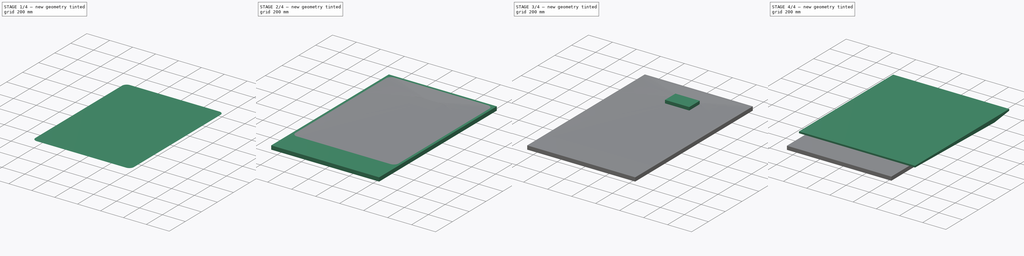
[diagram: build sequence overview — one tinted view per stage of 4, left to right]
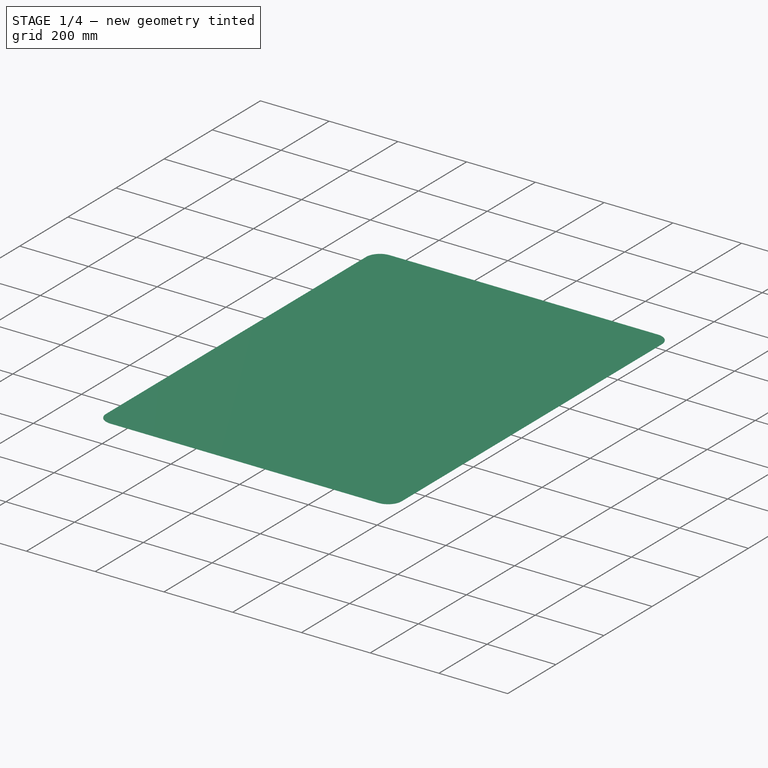
[diagram: stage 1 of 4 — iso view after this stage's code; geometry added in this stage tinted green]
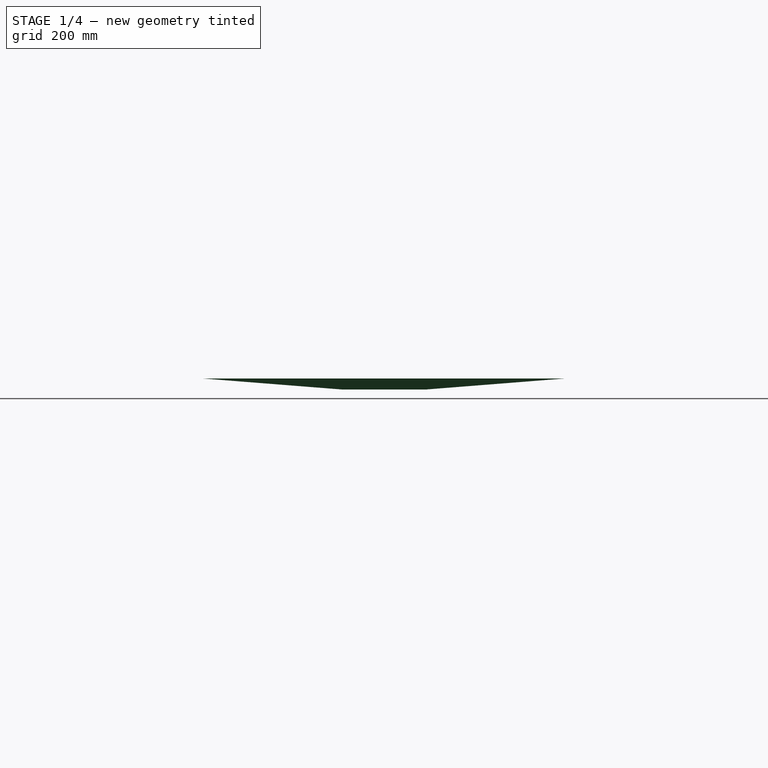
[diagram: stage 1 of 4 — front view after this stage's code; geometry added in this stage tinted green]
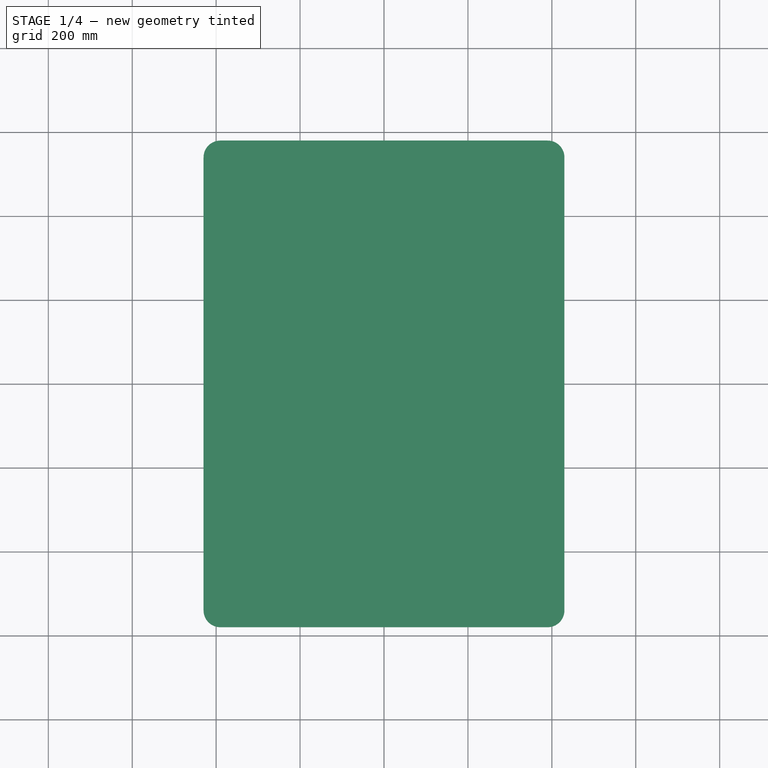
[diagram: stage 1 of 4 — top view after this stage's code; geometry added in this stage tinted green]
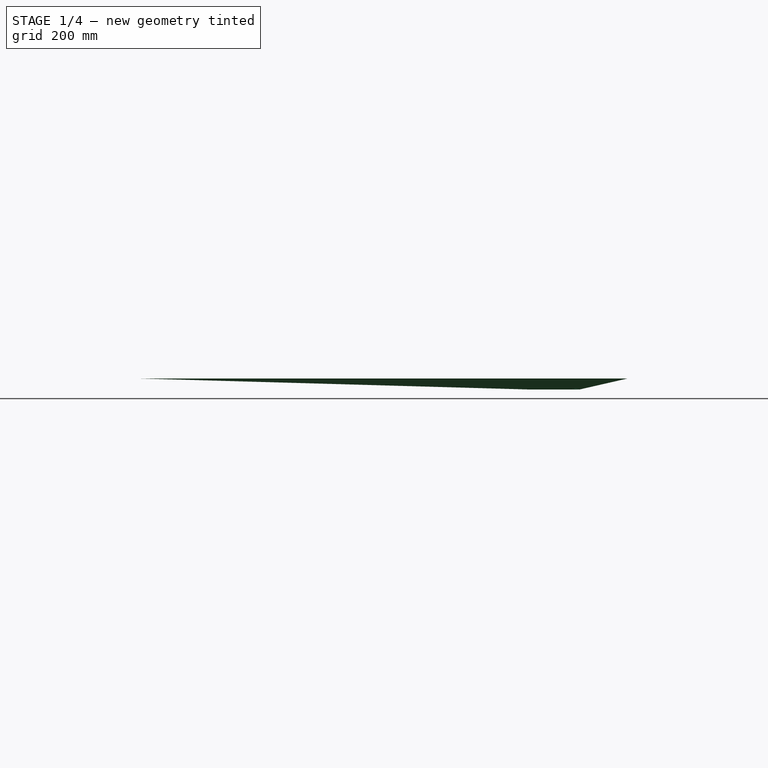
[diagram: stage 1 of 4 — right view after this stage's code; geometry added in this stage tinted green]
FCSTD DOCUMENT  (FreeCAD 0.16R6712 (Git))
Label: piatto
License: All rights reserved
LicenseURL: http://en.wikipedia.org/wiki/All_rights_reserved
objects: Sketcher::SketchObject×6, PartDesign::Pad×4, Part::FeaturePython×3, Spreadsheet::Sheet×1, Part::Loft×1, Part::Cut×1, Part::Fuse×1
note: 20 computed .brp shape members not serialized (recipe doc carries the construction recipe); baked Part::Feature solids carry a one-line shape summary decoded from their .brp

FEATURE [Sketcher::SketchObject] Sketch004  label="bassin001"
  expr: Constraints[19] = piatto.longueurbassin
  expr: Constraints[17] = piatto.conge
  expr: Constraints[18] = piatto.largeurbassin
  expr: Constraints[10] = piatto.conge
  expr: Constraints[11] = piatto.bobasutoc
  expr: Constraints[7] = piatto.bobatoc
  expr: Constraints[14] = piatto.conge
  expr: Constraints[6] = piatto.conge
  sketch-geometry (8):
    g0: LineSegment StartX=-390 StartY=180 StartZ=0 EndX=390 EndY=180 EndZ=0
    g1: LineSegment StartX=430 StartY=140 StartZ=0 EndX=430 EndY=-940 EndZ=0
    g2: LineSegment StartX=390 StartY=-980 StartZ=0 EndX=-390 EndY=-980 EndZ=0
    g3: LineSegment StartX=-430 StartY=-940 StartZ=0 EndX=-430 EndY=140 EndZ=0
    g4: ArcOfCircle CenterX=-390 CenterY=140 CenterZ=0 NormalX=0 NormalY=0 NormalZ=1 Radius=40 StartAngle=1.5708 EndAngle=3.14159
    g5: ArcOfCircle CenterX=390 CenterY=140 CenterZ=0 NormalX=0 NormalY=0 NormalZ=1 Radius=40 StartAngle=0 EndAngle=1.5708
    g6: ArcOfCircle CenterX=-390 CenterY=-940 CenterZ=0 NormalX=0 NormalY=0 NormalZ=1 Radius=40 StartAngle=3.14159 EndAngle=4.71239
    g7: ArcOfCircle CenterX=390 CenterY=-940 CenterZ=0 NormalX=0 NormalY=0 NormalZ=1 Radius=40 StartAngle=4.71239 EndAngle=6.28319
  constraints (20):
    c: Horizontal(g0)
    c: Horizontal(g2)
    c: Vertical(g1)
    c: Vertical(g3)
    c: Tangent(g0,g4) = 1.5708
    c: Tangent(g3,g4) = 1.5708
    c: Radius(g4) = 40
    c: Distance(g-1,g3) = 430
    c: Tangent(g0,g5) = 1.5708
    c: Tangent(g1,g5) = 1.5708
    c: Radius(g5) = 40
    c: Distance(g-1,g0) = 180
    c: Tangent(g3,g6) = 1.5708
    c: Tangent(g2,g6) = 1.5708
    c: Radius(g6) = 40
    c: Tangent(g2,g7) = 1.5708
    c: Tangent(g1,g7) = 1.5708
    c: Radius(g7) = 40
    c: DistanceX(g3,g1) = 860
    c: DistanceY(g2,g0) = 1160
FEATURE [Sketcher::SketchObject] Sketch005  label="evacuation001"
  Placement = pos=(0,0,-26) rot=(0,0,1;0rad)
  expr: Constraints[10] = piatto.Largeurevac / 2
  expr: Constraints[9] = piatto.longueurevac
  expr: Constraints[8] = piatto.Largeurevac
  sketch-geometry (4):
    g0: LineSegment StartX=-101.25 StartY=66.3364 StartZ=0 EndX=101.25 EndY=66.3364 EndZ=0
    g1: LineSegment StartX=101.25 StartY=66.3364 StartZ=0 EndX=101.25 EndY=-58.1636 EndZ=0
    g2: LineSegment StartX=101.25 StartY=-58.1636 StartZ=0 EndX=-101.25 EndY=-58.1636 EndZ=0
    g3: LineSegment StartX=-101.25 StartY=-58.1636 StartZ=0 EndX=-101.25 EndY=66.3364 EndZ=0
  constraints (11):
    c: Coincident(g0,g1)
    c: Coincident(g1,g2)
    c: Coincident(g2,g3)
    c: Coincident(g3,g0)
    c: Horizontal(g0)
    c: Horizontal(g2)
    c: Vertical(g1)
    c: Vertical(g3)
    c: DistanceX(g0,g0) = 202.5
    c: DistanceY(g3,g3) = 124.5
    c: Distance(g-1,g3) = 101.25
FEATURE [Part::Loft] Loft  label="SurfaceBassin"
  Closed = false
  Ruled = false
  Sections = -> [Sketch005,Sketch004]
  Solid = true
FEATURE [Part::FeaturePython] Clone001  label="Clone of SurfaceBassin"  # Draft clone (typed FeaturePython)
  Objects = -> [Loft]
  Scale = (1,1,1)
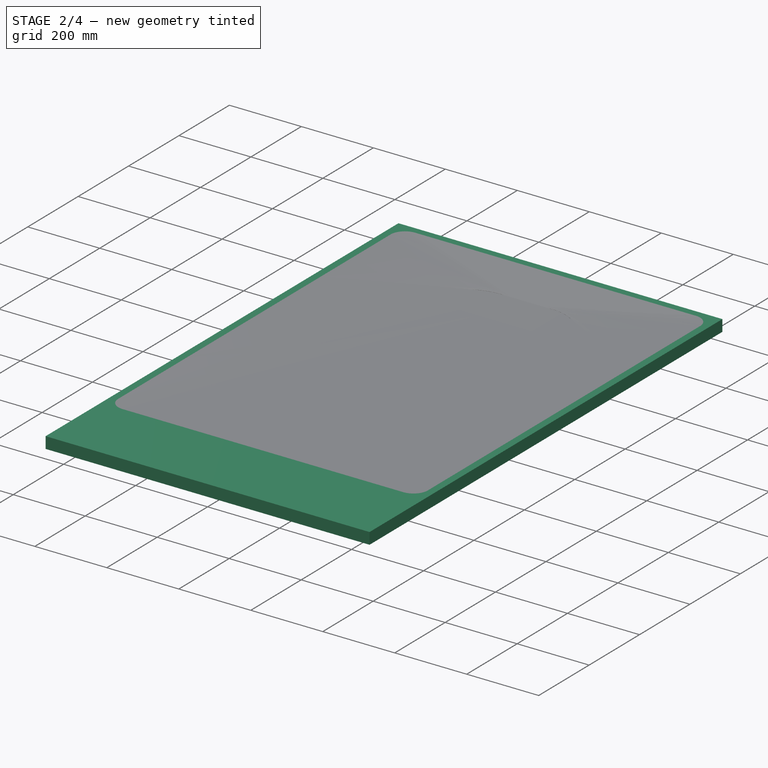
[diagram: stage 2 of 4 — iso view after this stage's code; geometry added in this stage tinted green]
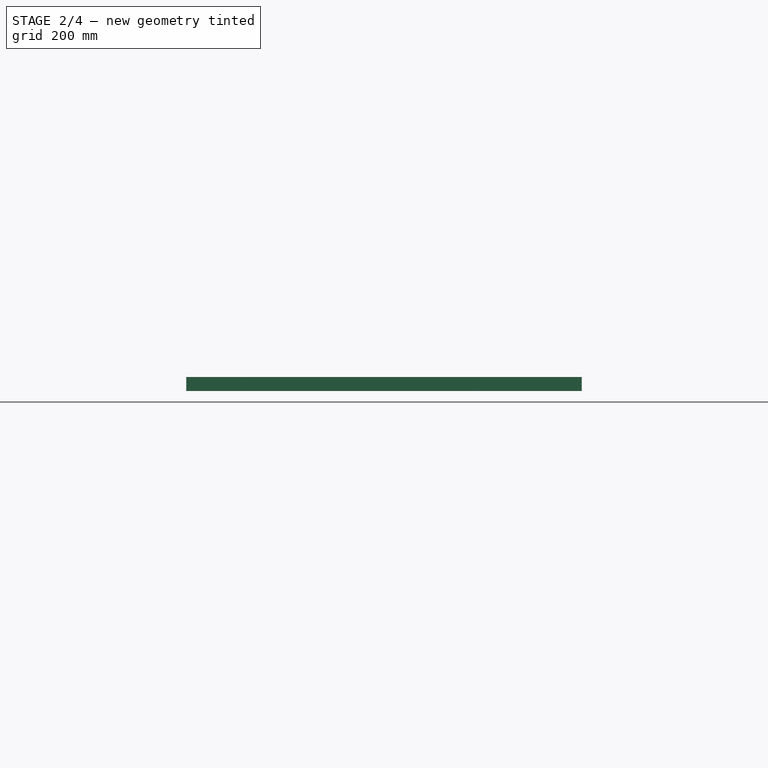
[diagram: stage 2 of 4 — front view after this stage's code; geometry added in this stage tinted green]
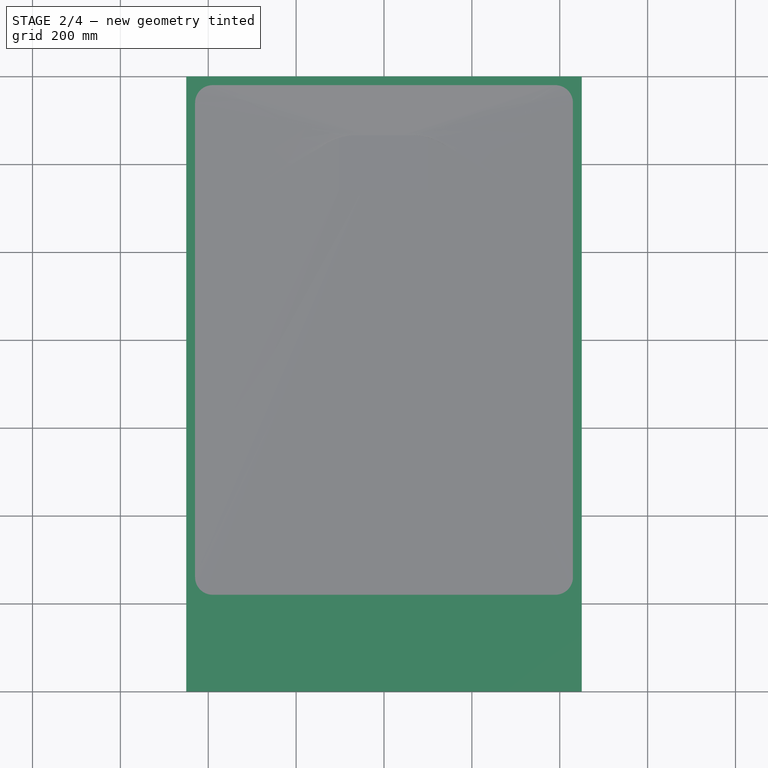
[diagram: stage 2 of 4 — top view after this stage's code; geometry added in this stage tinted green]
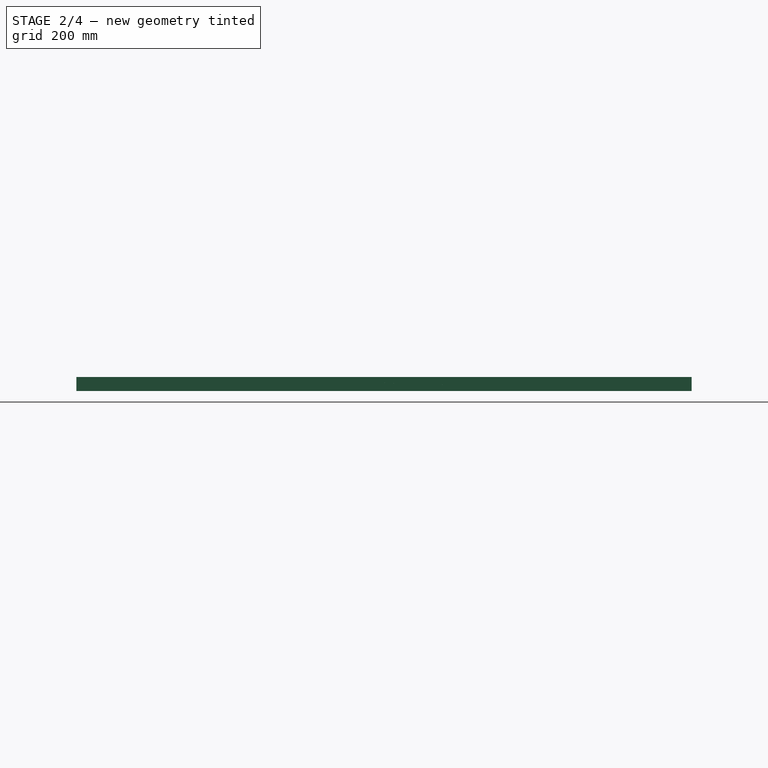
[diagram: stage 2 of 4 — right view after this stage's code; geometry added in this stage tinted green]
FEATURE [PartDesign::Pad] Pad001  label="PadBase"
  Length = 32
  Length2 = 100
  Reversed = true
  Sketch = -> Sketch
  Type = 0
  expr: Length = piatto.epaisseur
FEATURE [Part::FeaturePython] Clone  label="Clone of PadBase"  # Draft clone (typed FeaturePython)
  Objects = -> [Pad001]
  Scale = (1,1,1)
FEATURE [Part::Cut] Cut
  Base = -> Clone
  Tool = -> Clone001
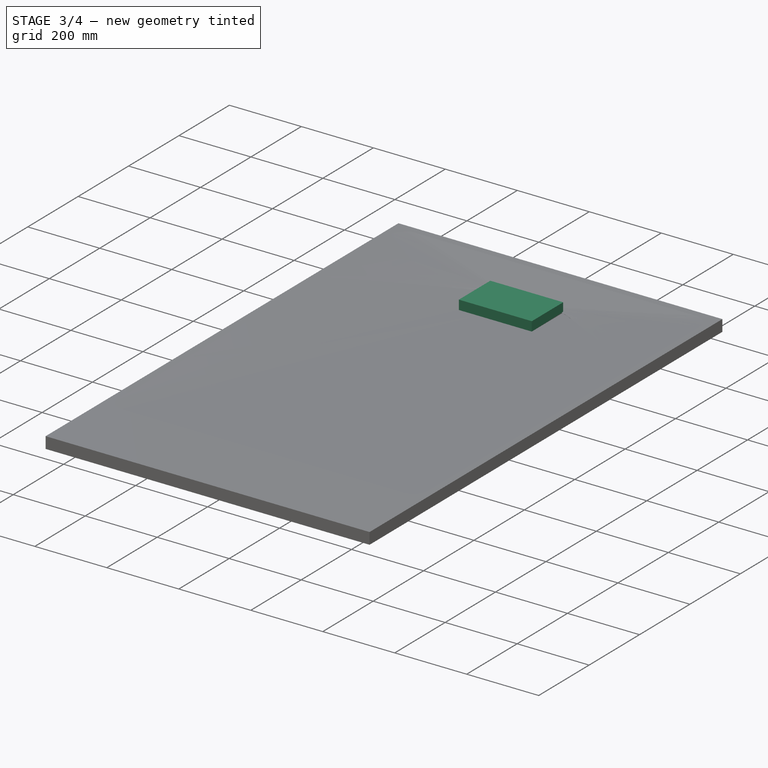
[diagram: stage 3 of 4 — iso view after this stage's code; geometry added in this stage tinted green]
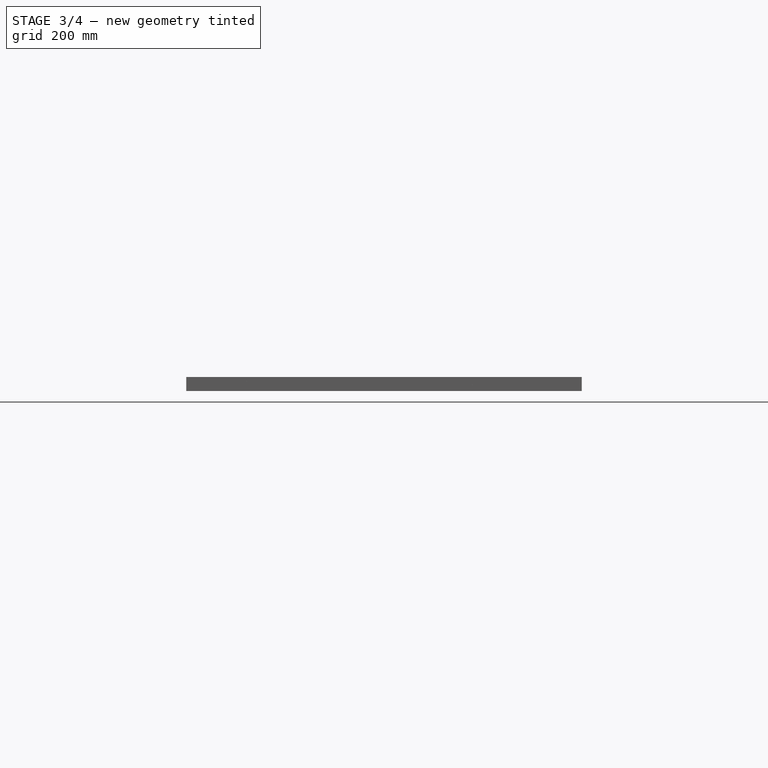
[diagram: stage 3 of 4 — front view after this stage's code; geometry added in this stage tinted green]
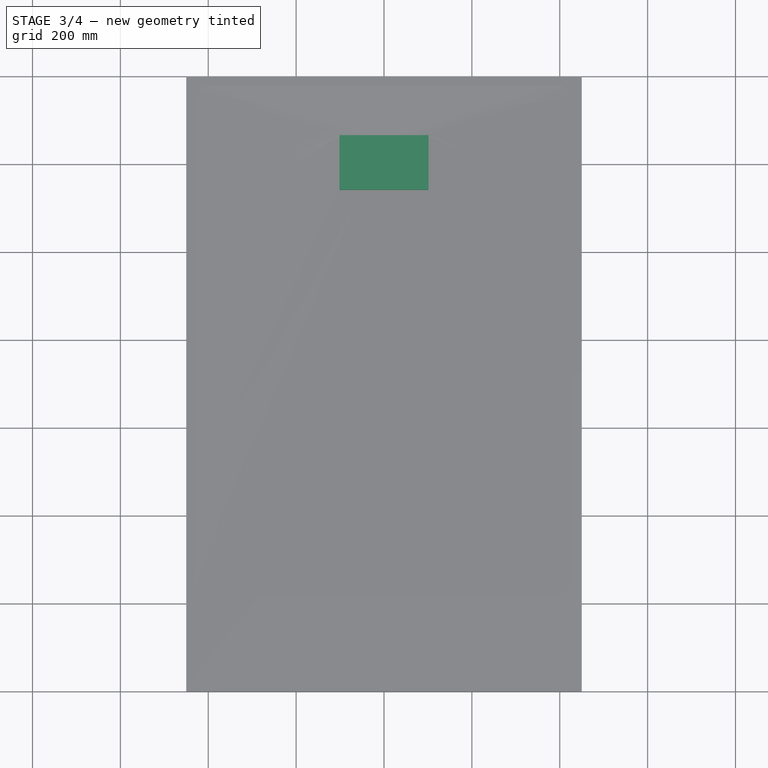
[diagram: stage 3 of 4 — top view after this stage's code; geometry added in this stage tinted green]
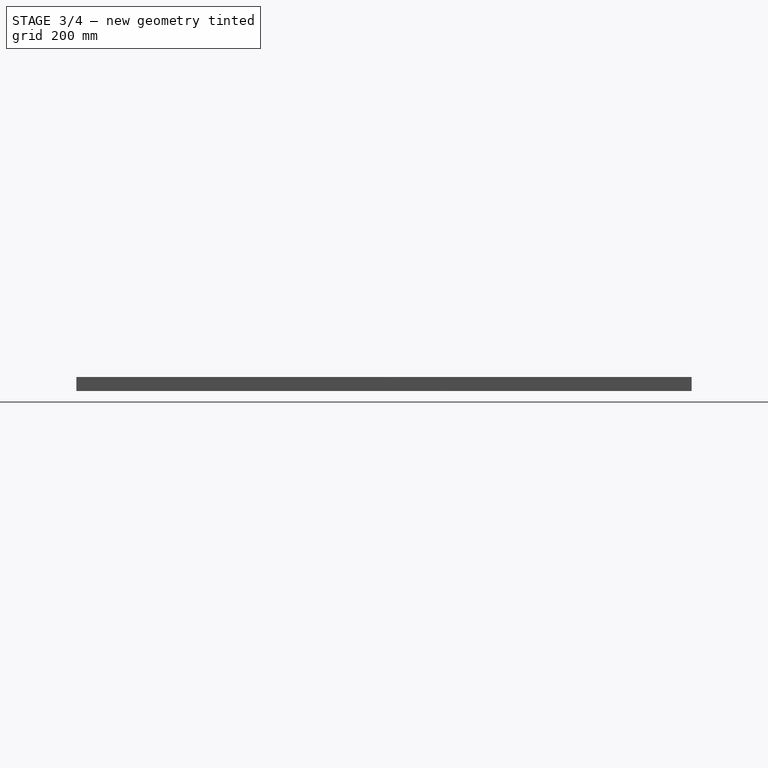
[diagram: stage 3 of 4 — right view after this stage's code; geometry added in this stage tinted green]
FEATURE [PartDesign::Pad] Pad002  label="PadEvacuation"
  Length = 32
  Length2 = 100
  Reversed = true
  Sketch = -> Sketch002
  Type = 0
  expr: Length = piatto.epaisseur
FEATURE [Part::FeaturePython] Clone002  label="Clone of PadEvacuation"  # Draft clone (typed FeaturePython)
  Objects = -> [Pad002]
  Scale = (1,1,1)
FEATURE [Part::Fuse] Fusion  label="TubDouche"
  Base = -> Cut
  Tool = -> Clone002
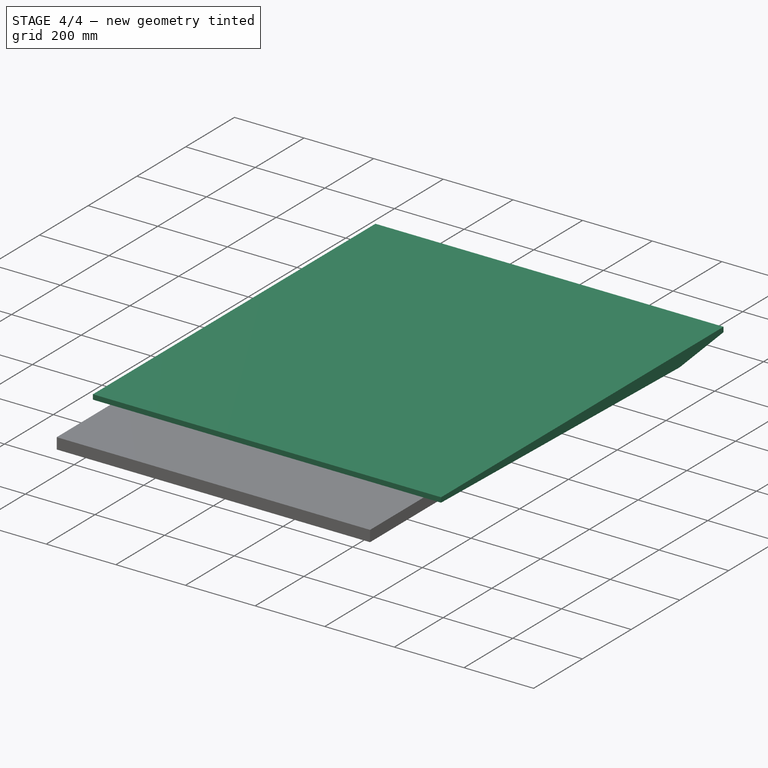
[diagram: stage 4 of 4 — iso view after this stage's code; geometry added in this stage tinted green]
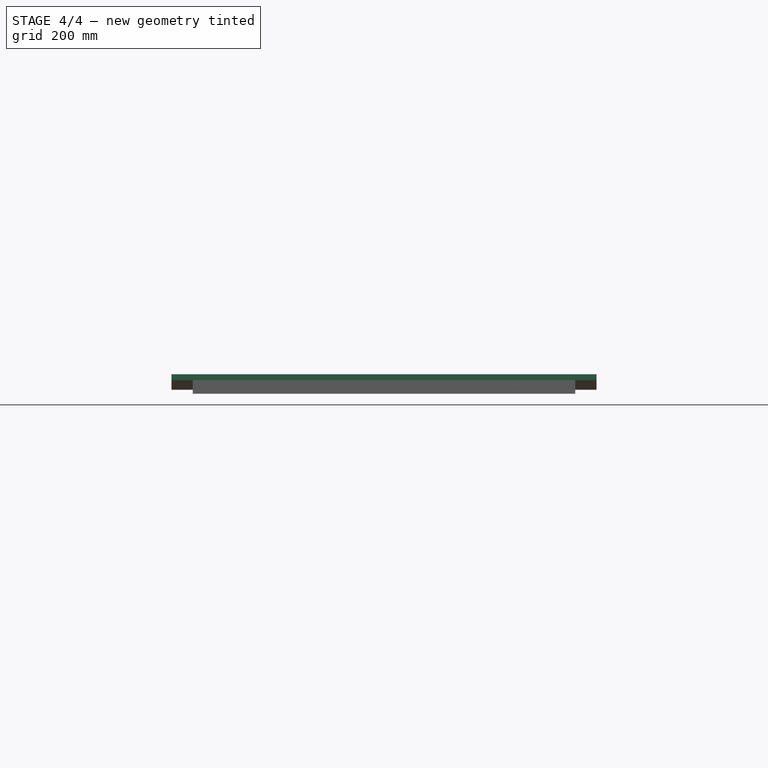
[diagram: stage 4 of 4 — front view after this stage's code; geometry added in this stage tinted green]
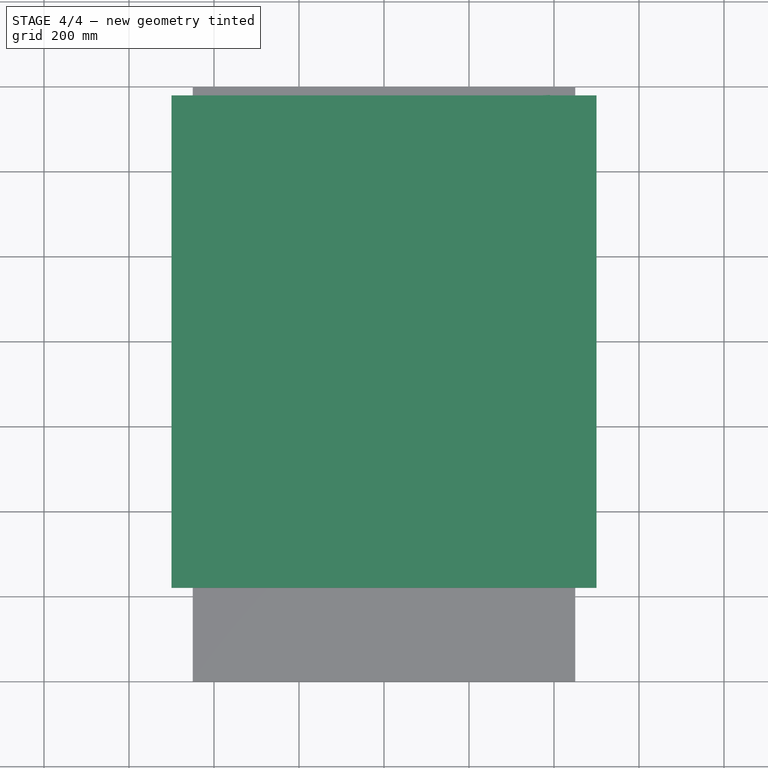
[diagram: stage 4 of 4 — top view after this stage's code; geometry added in this stage tinted green]
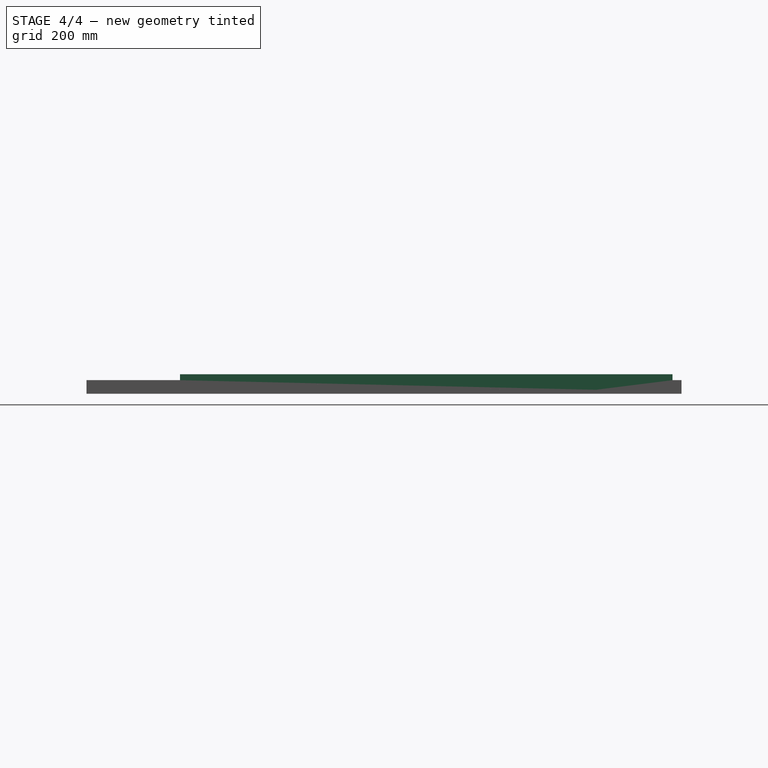
[diagram: stage 4 of 4 — right view after this stage's code; geometry added in this stage tinted green]
FEATURE [Sketcher::SketchObject] Sketch  label="base"
  expr: Constraints[11] = piatto.Longueur
  expr: Constraints[10] = piatto.largeur / 2
  expr: Constraints[9] = piatto.largeur
  expr: Constraints[8] = piatto.btoevac
  sketch-geometry (4):
    g0: LineSegment StartX=-450 StartY=200 StartZ=0 EndX=450 EndY=200 EndZ=0
    g1: LineSegment StartX=450 StartY=200 StartZ=0 EndX=450 EndY=-1200 EndZ=0
    g2: LineSegment StartX=450 StartY=-1200 StartZ=0 EndX=-450 EndY=-1200 EndZ=0
    g3: LineSegment StartX=-450 StartY=-1200 StartZ=0 EndX=-450 EndY=200 EndZ=0
  constraints (12):
    c: Coincident(g0,g1)
    c: Coincident(g1,g2)
    c: Coincident(g2,g3)
    c: Coincident(g3,g0)
    c: Horizontal(g0)
    c: Horizontal(g2)
    c: Vertical(g1)
    c: Vertical(g3)
    c: DistanceY(g-1,g0) = 200
    c: DistanceX(g0,g0) = 900
    c: DistanceX(g0,g-1) = 450
    c: DistanceY(g3,g3) = 1400
FEATURE [Spreadsheet::Sheet] Spreadsheet  label="piatto"
  cells = B2=Extérieur; E2=Intérieur; A3=Bord to centre Evac; B3(btoevac)=200; D3=Bord bassin sup à centre; E3(bobasutoc)==piatto.btoevac - piatto.babl; G3=Largeur Evacuation; H3(Largeurevac)=202.5; A4=Largeur; G4=Hauteur Evacuation; H4(longueurevac)=124.5; A5=Largeur; B5(largeur)=900; A6=Longeur; B6(Longueur)=1400; A7=Epaisseur; B7(epaisseur)=32; A9=Bord à bord largeur; B9(babl)=20; D9=Bord bassin à centre; E9(bobatoc)==piatto.largeur / 2 - piatto.babl; A10=Bord à bord marge; B10(babm)=220; D10=Profondeur bassin; E10(profondeurbassin)=26; A11=Congé; B11(conge)=40; D11=Largeur bassin; E11(largeurbassin)==piatto.largeur - 2 * piatto.babl; D12=Longeur bassin; E12(longueurbassin)==piatto.Longueur - piatto.babl + piatto.babm
FEATURE [Sketcher::SketchObject] Sketch001  label="bassin"
  expr: Constraints[19] = piatto.longueurbassin
  expr: Constraints[17] = piatto.conge
  expr: Constraints[18] = piatto.largeurbassin
  expr: Constraints[10] = piatto.conge
  expr: Constraints[11] = piatto.bobasutoc
  expr: Constraints[7] = piatto.bobatoc
  expr: Constraints[14] = piatto.conge
  expr: Constraints[6] = piatto.conge
  sketch-geometry (8):
    g0: LineSegment StartX=-390 StartY=180 StartZ=0 EndX=390 EndY=180 EndZ=0
    g1: LineSegment StartX=430 StartY=140 StartZ=0 EndX=430 EndY=-940 EndZ=0
    g2: LineSegment StartX=390 StartY=-980 StartZ=0 EndX=-390 EndY=-980 EndZ=0
    g3: LineSegment StartX=-430 StartY=-940 StartZ=0 EndX=-430 EndY=140 EndZ=0
    g4: ArcOfCircle CenterX=-390 CenterY=140 CenterZ=0 NormalX=0 NormalY=0 NormalZ=1 Radius=40 StartAngle=1.5708 EndAngle=3.14159
    g5: ArcOfCircle CenterX=390 CenterY=140 CenterZ=0 NormalX=0 NormalY=0 NormalZ=1 Radius=40 StartAngle=0 EndAngle=1.5708
    g6: ArcOfCircle CenterX=-390 CenterY=-940 CenterZ=0 NormalX=0 NormalY=0 NormalZ=1 Radius=40 StartAngle=3.14159 EndAngle=4.71239
    g7: ArcOfCircle CenterX=390 CenterY=-940 CenterZ=0 NormalX=0 NormalY=0 NormalZ=1 Radius=40 StartAngle=4.71239 EndAngle=6.28319
  constraints (20):
    c: Horizontal(g0)
    c: Horizontal(g2)
    c: Vertical(g1)
    c: Vertical(g3)
    c: Tangent(g0,g4) = 1.5708
    c: Tangent(g3,g4) = 1.5708
    c: Radius(g4) = 40
    c: Distance(g-1,g3) = 430
    c: Tangent(g0,g5) = 1.5708
    c: Tangent(g1,g5) = 1.5708
    c: Radius(g5) = 40
    c: Distance(g-1,g0) = 180
    c: Tangent(g3,g6) = 1.5708
    c: Tangent(g2,g6) = 1.5708
    c: Radius(g6) = 40
    c: Tangent(g2,g7) = 1.5708
    c: Tangent(g1,g7) = 1.5708
    c: Radius(g7) = 40
    c: DistanceX(g3,g1) = 860
    c: DistanceY(g2,g0) = 1160
FEATURE [PartDesign::Pad] Pad  label="PadBassin"
  Length = 26
  Length2 = 100
  Reversed = true
  Sketch = -> Sketch001
  Type = 0
  expr: Length = piatto.profondeurbassin
FEATURE [Sketcher::SketchObject] Sketch002  label="evacuation"
  expr: Constraints[10] = piatto.Largeurevac / 2
  expr: Constraints[9] = piatto.longueurevac
  expr: Constraints[8] = piatto.Largeurevac
  sketch-geometry (4):
    g0: LineSegment StartX=-101.25 StartY=66.3364 StartZ=0 EndX=101.25 EndY=66.3364 EndZ=0
    g1: LineSegment StartX=101.25 StartY=66.3364 StartZ=0 EndX=101.25 EndY=-58.1636 EndZ=0
    g2: LineSegment StartX=101.25 StartY=-58.1636 StartZ=0 EndX=-101.25 EndY=-58.1636 EndZ=0
    g3: LineSegment StartX=-101.25 StartY=-58.1636 StartZ=0 EndX=-101.25 EndY=66.3364 EndZ=0
  constraints (11):
    c: Coincident(g0,g1)
    c: Coincident(g1,g2)
    c: Coincident(g2,g3)
    c: Coincident(g3,g0)
    c: Horizontal(g0)
    c: Horizontal(g2)
    c: Vertical(g1)
    c: Vertical(g3)
    c: DistanceX(g0,g0) = 202.5
    c: DistanceY(g3,g3) = 124.5
    c: Distance(g-1,g3) = 101.25
FEATURE [Sketcher::SketchObject] Sketch003  label="profilvolumelong"
  Placement = pos=(0,0,0) rot=(0.57735,0.57735,0.57735;2.0944rad)
  sketch-geometry (5):
    g0: LineSegment StartX=-980 StartY=14 StartZ=0 EndX=-980 EndY=0 EndZ=0
    g1: LineSegment StartX=-980 StartY=0 StartZ=0 EndX=-1.07914 EndY=-22.5567 EndZ=0
    g2: LineSegment StartX=-1.07914 StartY=-22.5567 StartZ=0 EndX=178.86 EndY=0 EndZ=0
    g3: LineSegment StartX=178.86 StartY=0 StartZ=0 EndX=178.86 EndY=14 EndZ=0
    g4: LineSegment StartX=178.86 StartY=14 StartZ=0 EndX=-980 EndY=14 EndZ=0
  constraints (11):
    c: Vertical(g0)
    c: Coincident(g0,g1)
    c: Coincident(g1,g2)
    c: Coincident(g2,g3)
    c: Coincident(g3,g4)
    c: Coincident(g4,g0)
    c: Vertical(g3)
    c: Horizontal(g4)
    c: Angle(g1) = -0.0230383
    c: PointOnObject(g0,g-1)
    c: PointOnObject(g2,g-1)
FEATURE [PartDesign::Pad] Pad003  label="PadProfilLong"
  Length = 1000
  Length2 = 100
  Midplane = true
  Placement = pos=(0,0,0) rot=(0.57735,0.57735,0.57735;2.0944rad)
  Sketch = -> Sketch003
  Type = 0
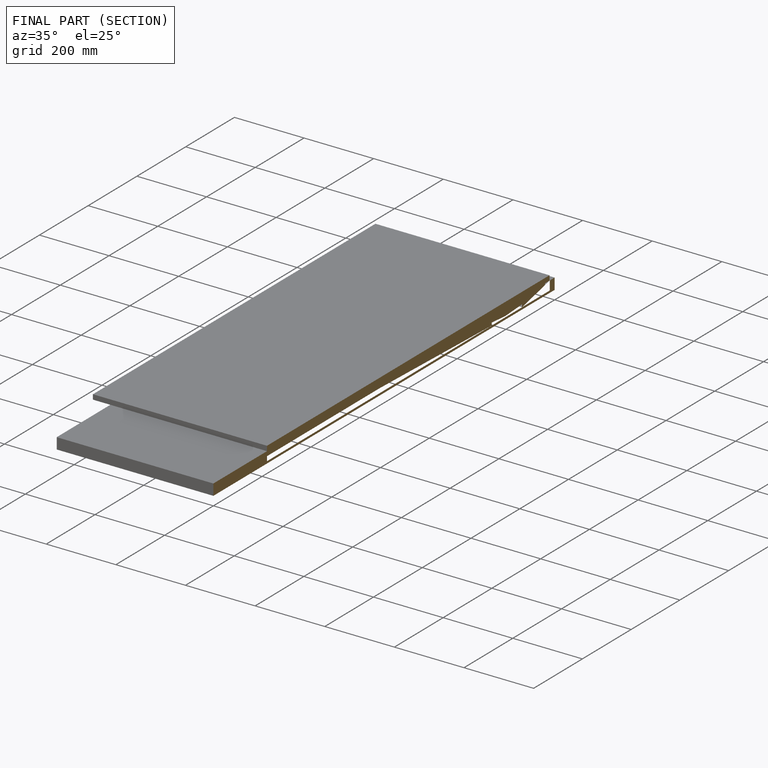
[diagram: finished part — half-section view (interior)]
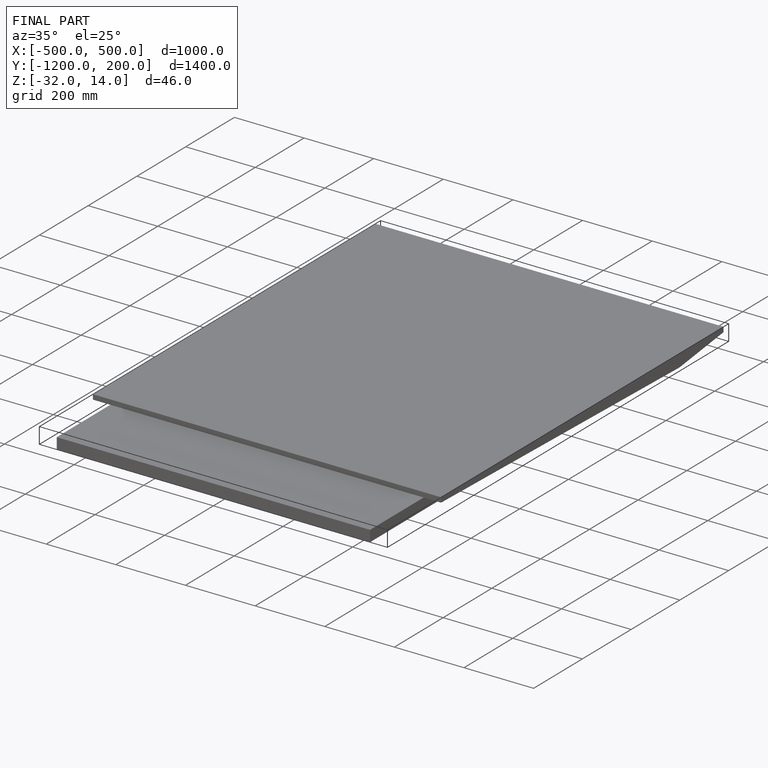
[diagram: finished part — iso view with bounding-box wireframe]
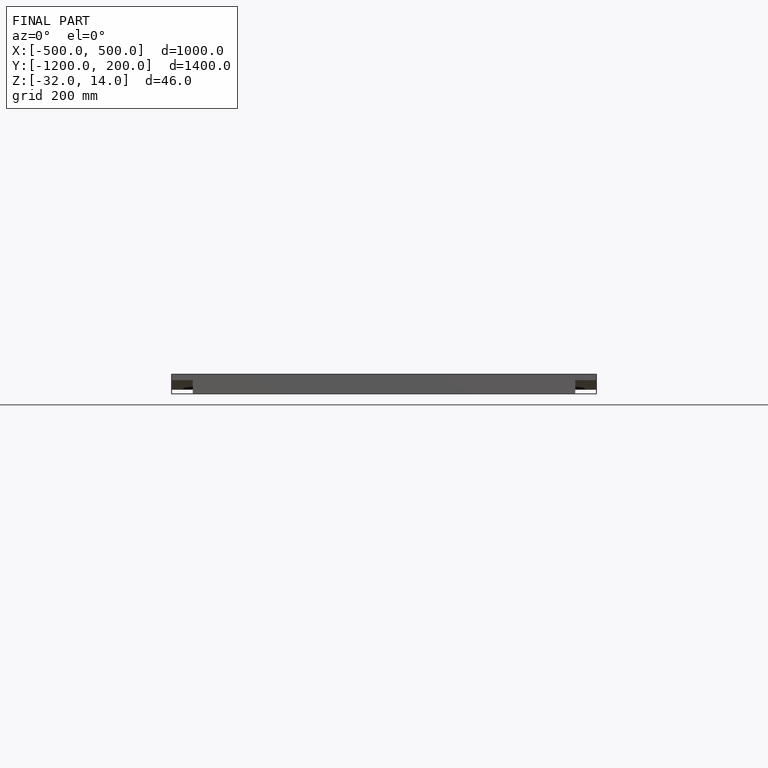
[diagram: finished part — front view with bounding-box wireframe]
